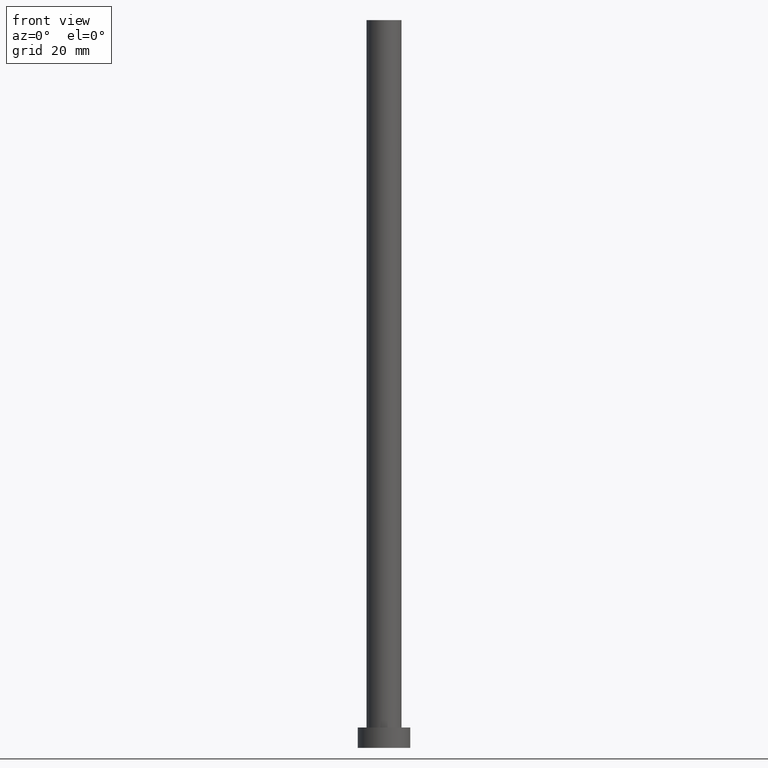
[diagram: clean part render]
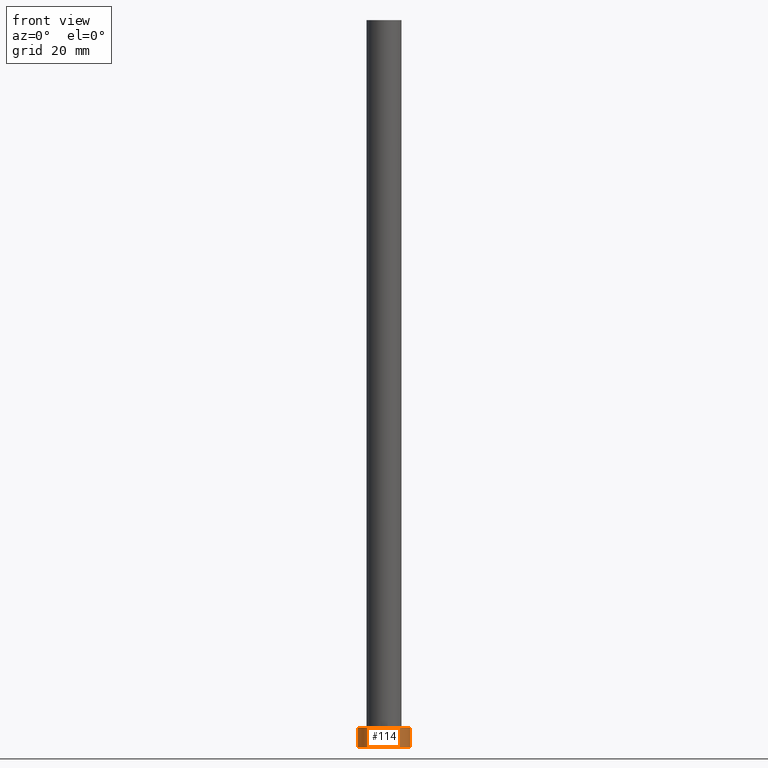
[diagram: same view with one face highlighted and labeled with its STEP entity id]
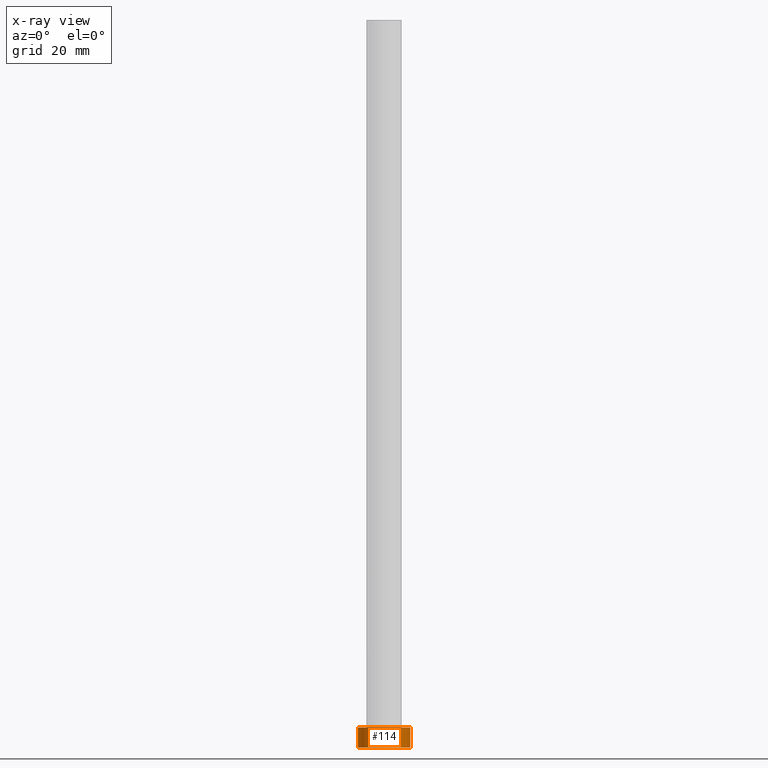
[diagram: x-ray of the same camera — body ghosted, the highlighted face saturated]
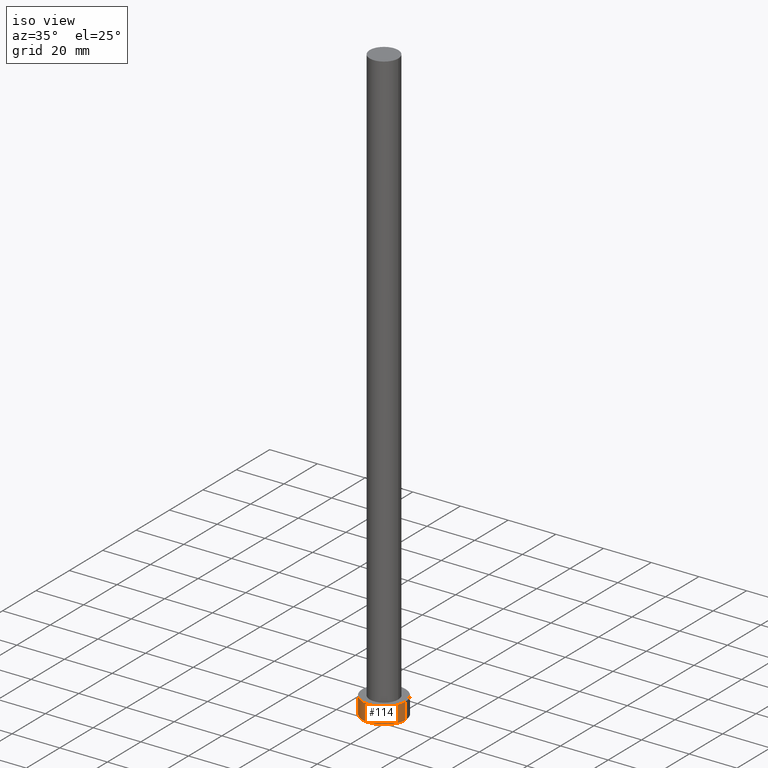
[diagram: same view with one face highlighted and labeled with its STEP entity id]
A machine part, front view. The second image highlights one B-rep face of the part: STEP entity #114.
The next image is the same camera in x-ray: the body ghosted, the highlighted face saturated — about 0% of this face is hidden behind the body in this view.
A second angle (iso view) of the same face is appended — the face is thin or edge-on in the first view.
In plain terms, the highlighted cylindrical surface (edge-blend (fillet) strip) has radius 9 mm, axis along (-0, -0, -1).
Its self-contained STEP definition (entity closure, byte-faithful):
#8 = EDGE_CURVE ( 'NONE', #193, #174, #25, .T. ) ;
#20 = VERTEX_POINT ( 'NONE', #63 ) ;
#25 = CIRCLE ( 'NONE', #30, 9.000000000000000000 ) ;
#26 = LINE ( 'NONE', #70, #95 ) ;
#28 = CARTESIAN_POINT ( 'NONE',  ( 0.000000000000000000, 0.000000000000000000, 7.000000000000000000 ) ) ;
#29 = DIRECTION ( 'NONE',  ( -0.000000000000000000, -0.000000000000000000, -1.000000000000000000 ) ) ;
#30 = AXIS2_PLACEMENT_3D ( 'NONE', #136, #234, #209 ) ;
#35 = ORIENTED_EDGE ( 'NONE', *, *, #142, .F. ) ;
#56 = AXIS2_PLACEMENT_3D ( 'NONE', #115, #118, #191 ) ;
#63 = CARTESIAN_POINT ( 'NONE',  ( -9.000000000000000000, 0.000000000000000000, 0.000000000000000000 ) ) ;
#68 = EDGE_CURVE ( 'NONE', #20, #152, #81, .T. ) ;
#69 = DIRECTION ( 'NONE',  ( -1.000000000000000000, 0.000000000000000000, 0.000000000000000000 ) ) ;
#70 = CARTESIAN_POINT ( 'NONE',  ( -9.000000000000000000, 0.000000000000000000, 7.000000000000000000 ) ) ;
#76 = EDGE_LOOP ( 'NONE', ( #35, #160, #109, #186 ) ) ;
#81 = CIRCLE ( 'NONE', #56, 9.000000000000000000 ) ;
#84 = CARTESIAN_POINT ( 'NONE',  ( 9.000000000000000000, 1.102182119232617714E-15, 7.000000000000000000 ) ) ;
#88 = DIRECTION ( 'NONE',  ( -0.000000000000000000, -0.000000000000000000, -1.000000000000000000 ) ) ;
#95 = VECTOR ( 'NONE', #29, 1000.000000000000000 ) ;
#100 = EDGE_CURVE ( 'NONE', #193, #20, #26, .T. ) ;
#108 = AXIS2_PLACEMENT_3D ( 'NONE', #28, #88, #69 ) ;
#109 = ORIENTED_EDGE ( 'NONE', *, *, #100, .T. ) ;
#114 = ADVANCED_FACE ( 'NONE', ( #141 ), #215, .T. ) ;
#115 = CARTESIAN_POINT ( 'NONE',  ( 0.000000000000000000, 0.000000000000000000, 0.000000000000000000 ) ) ;
#118 = DIRECTION ( 'NONE',  ( 0.000000000000000000, 0.000000000000000000, 1.000000000000000000 ) ) ;
#125 = CARTESIAN_POINT ( 'NONE',  ( 9.000000000000000000, 1.102182119232617714E-15, 0.000000000000000000 ) ) ;
#126 = LINE ( 'NONE', #165, #184 ) ;
#136 = CARTESIAN_POINT ( 'NONE',  ( 0.000000000000000000, 0.000000000000000000, 7.000000000000000000 ) ) ;
#141 = FACE_OUTER_BOUND ( 'NONE', #76, .T. ) ;
#142 = EDGE_CURVE ( 'NONE', #174, #152, #126, .T. ) ;
#152 = VERTEX_POINT ( 'NONE', #125 ) ;
#160 = ORIENTED_EDGE ( 'NONE', *, *, #8, .F. ) ;
#162 = DIRECTION ( 'NONE',  ( -0.000000000000000000, -0.000000000000000000, -1.000000000000000000 ) ) ;
#165 = CARTESIAN_POINT ( 'NONE',  ( 9.000000000000000000, 1.102182119232617714E-15, 7.000000000000000000 ) ) ;
#174 = VERTEX_POINT ( 'NONE', #84 ) ;
#184 = VECTOR ( 'NONE', #162, 1000.000000000000000 ) ;
#186 = ORIENTED_EDGE ( 'NONE', *, *, #68, .T. ) ;
#191 = DIRECTION ( 'NONE',  ( 1.000000000000000000, 0.000000000000000000, 0.000000000000000000 ) ) ;
#193 = VERTEX_POINT ( 'NONE', #241 ) ;
#209 = DIRECTION ( 'NONE',  ( 1.000000000000000000, 0.000000000000000000, 0.000000000000000000 ) ) ;
#215 = CYLINDRICAL_SURFACE ( 'NONE', #108, 9.000000000000000000 ) ;
#234 = DIRECTION ( 'NONE',  ( 0.000000000000000000, 0.000000000000000000, 1.000000000000000000 ) ) ;
#241 = CARTESIAN_POINT ( 'NONE',  ( -9.000000000000000000, 0.000000000000000000, 7.000000000000000000 ) ) ;